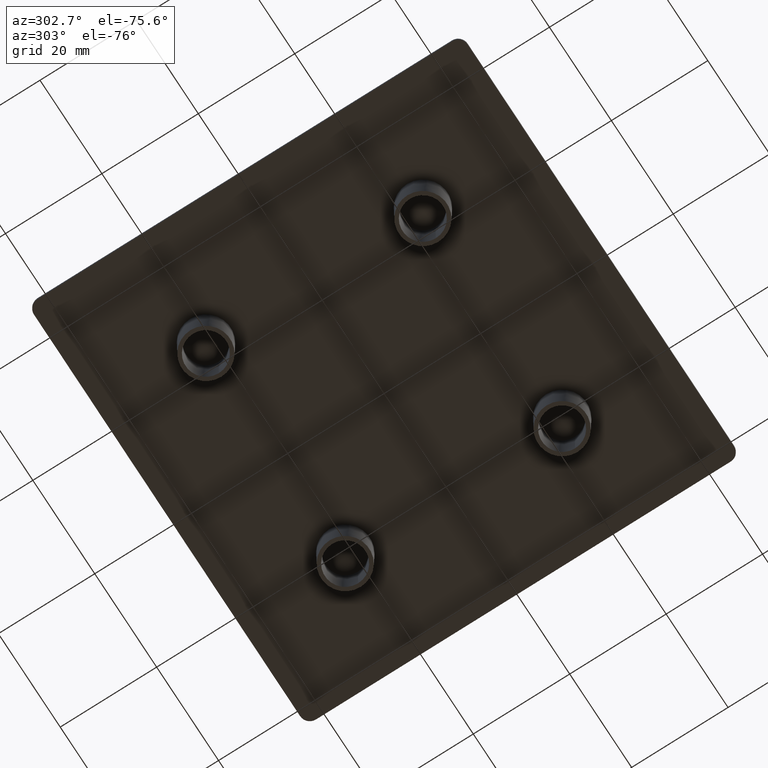
[diagram: clean part render]
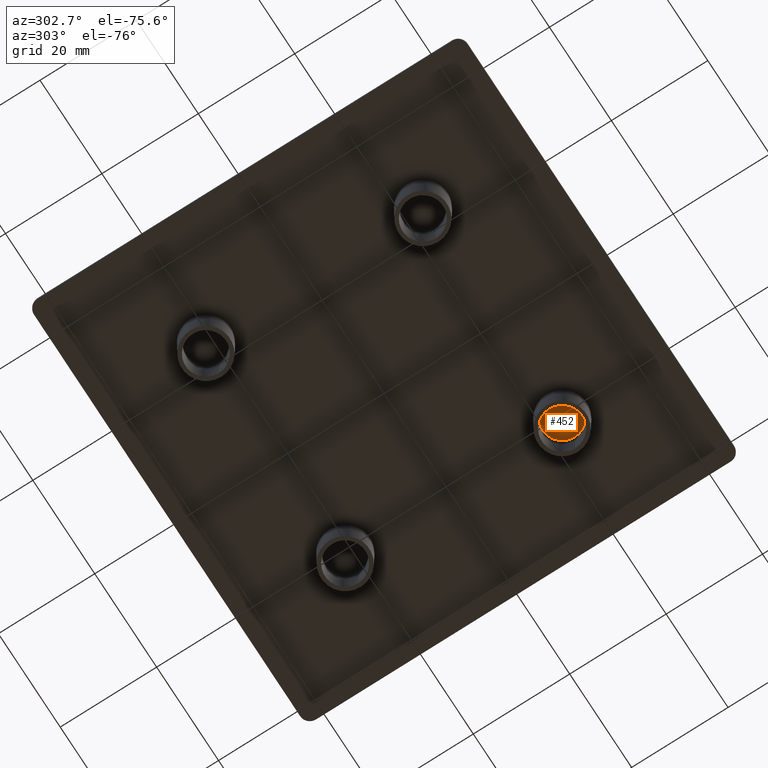
[diagram: same view with one face highlighted and labeled with its STEP entity id]
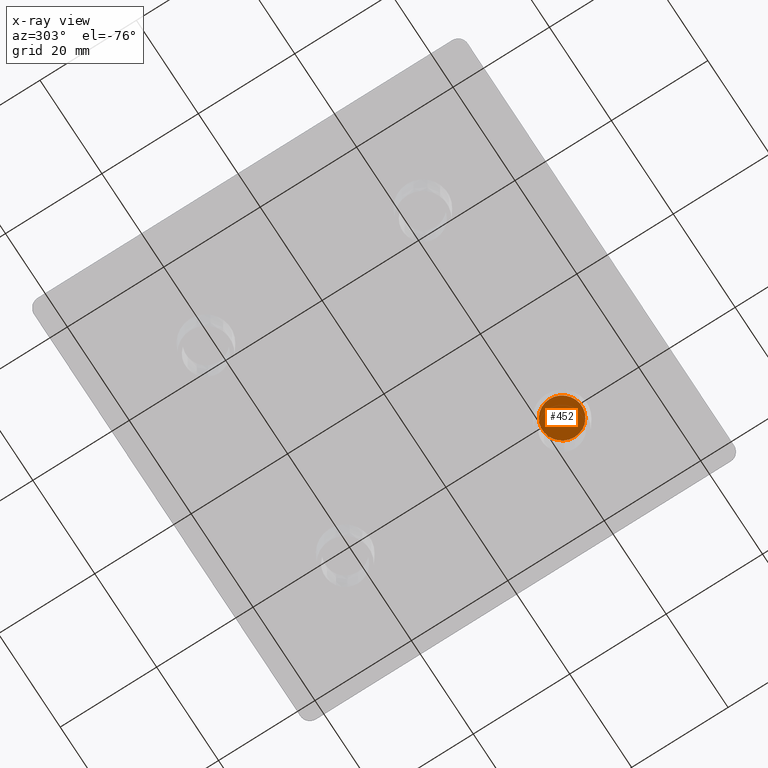
[diagram: x-ray of the same camera — body ghosted, the highlighted face saturated]
A machine part, auxiliary view. The second image highlights one B-rep face of the part: STEP entity #452.
The next image is the same camera in x-ray: the body ghosted, the highlighted face saturated — about 0% of this face is hidden behind the body in this view.
In plain terms, the highlighted planar face has unit normal (0, 0, 1).
Its self-contained STEP definition (entity closure, byte-faithful):
#42=PLANE('',#526);
#64=FACE_OUTER_BOUND('',#106,.T.);
#106=EDGE_LOOP('',(#363));
#182=CIRCLE('',#493,4.06908701303837);
#214=VERTEX_POINT('',#723);
#251=EDGE_CURVE('',#214,#214,#182,.T.);
#363=ORIENTED_EDGE('',*,*,#251,.T.);
#452=ADVANCED_FACE('',(#64),#42,.F.);
#493=AXIS2_PLACEMENT_3D('',#725,#564,#565);
#526=AXIS2_PLACEMENT_3D('',#791,#641,#642);
#564=DIRECTION('center_axis',(0.,0.,-1.));
#565=DIRECTION('ref_axis',(-1.,0.,0.));
#641=DIRECTION('center_axis',(0.,0.,1.));
#642=DIRECTION('ref_axis',(1.,0.,0.));
#723=CARTESIAN_POINT('',(26.5690870130384,-22.5,0.));
#725=CARTESIAN_POINT('Origin',(22.5,-22.5,0.));
#791=CARTESIAN_POINT('Origin',(2.96059473233375E-15,-3.70074341541719E-15,
0.));